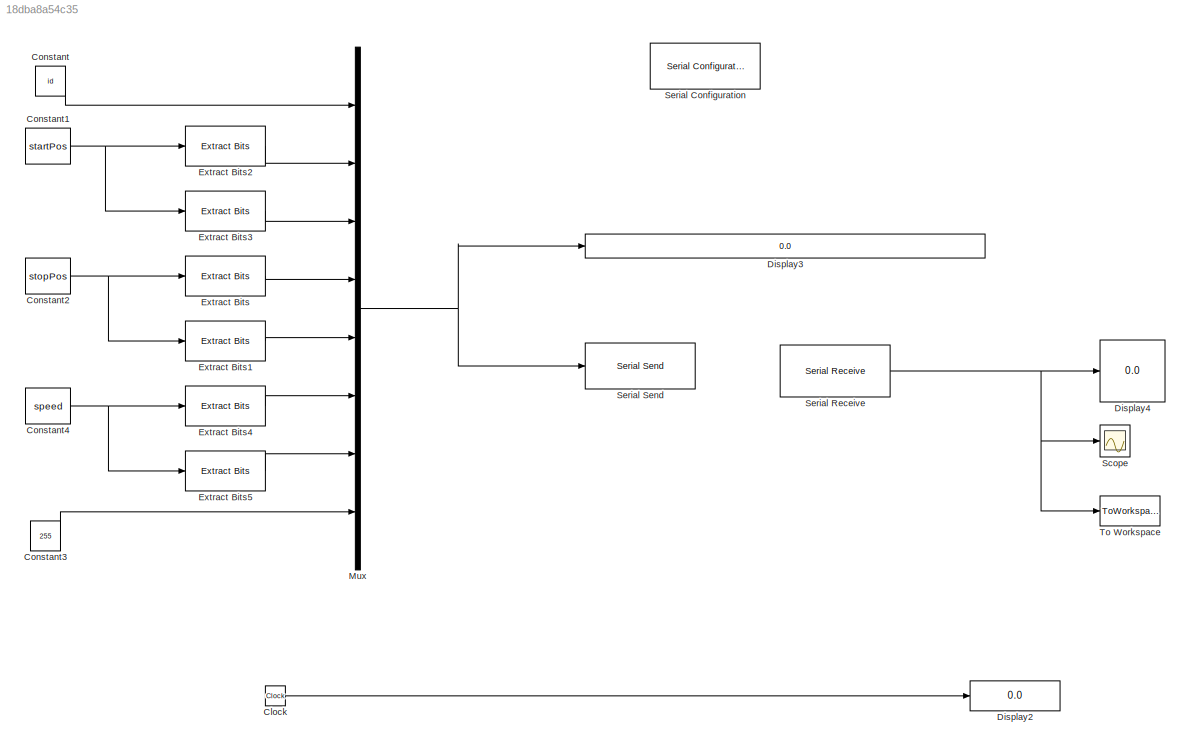
MODEL slx_18dba8a54c35
KIND model
BLOCK [Clock] Clock
BLOCK [Constant] Constant
  OutDataTypeStr = uint8
  SampleTime = 1
  Value = id
BLOCK [Constant] Constant1
  OutDataTypeStr = uint16
  SampleTime = 1
  Value = startPos
BLOCK [Constant] Constant2
  OutDataTypeStr = uint16
  SampleTime = 1
  Value = stopPos
BLOCK [Constant] Constant3
  OutDataTypeStr = uint8
  SampleTime = 1
  Value = 255
BLOCK [Constant] Constant4
  OutDataTypeStr = uint16
  SampleTime = 1
  Value = speed
BLOCK [Display] Display2
  Decimation = 1
  Format = hex (Stored Integer)
  Ports = [1]
BLOCK [Display] Display3
  Decimation = 1
  Format = hex (Stored Integer)
  Ports = [1]
BLOCK [Display] Display4
  Decimation = 1
  Format = hex (Stored Integer)
  Ports = [1]
BLOCK [Reference] Extract Bits  REF=simulink/Logic and Bit
Operations/Extract Bits
  Ports = [1, 1]
  SourceBlock = simulink/Logic and Bit\nOperations/Extract Bits
  SourceType = Extract Bits
  bitIdxRange = [0 7]
  bitsToExtract = Upper half
  numBits = 8
  outScalingMode = Treat bit field as an integer
BLOCK [Reference] Extract Bits1  REF=simulink/Logic and Bit
Operations/Extract Bits
  Ports = [1, 1]
  SourceBlock = simulink/Logic and Bit\nOperations/Extract Bits
  SourceType = Extract Bits
  bitIdxRange = [0 7]
  bitsToExtract = Lower half
  numBits = 8
  outScalingMode = Treat bit field as an integer
BLOCK [Reference] Extract Bits2  REF=simulink/Logic and Bit
Operations/Extract Bits
  Ports = [1, 1]
  SourceBlock = simulink/Logic and Bit\nOperations/Extract Bits
  SourceType = Extract Bits
  bitIdxRange = [0 7]
  bitsToExtract = Upper half
  numBits = 8
  outScalingMode = Treat bit field as an integer
BLOCK [Reference] Extract Bits3  REF=simulink/Logic and Bit
Operations/Extract Bits
  Ports = [1, 1]
  SourceBlock = simulink/Logic and Bit\nOperations/Extract Bits
  SourceType = Extract Bits
  bitIdxRange = [0 7]
  bitsToExtract = Lower half
  numBits = 8
  outScalingMode = Treat bit field as an integer
BLOCK [Reference] Extract Bits4  REF=simulink/Logic and Bit
Operations/Extract Bits
  Ports = [1, 1]
  SourceBlock = simulink/Logic and Bit\nOperations/Extract Bits
  SourceType = Extract Bits
  bitIdxRange = [0 7]
  bitsToExtract = Upper half
  numBits = 8
  outScalingMode = Treat bit field as an integer
BLOCK [Reference] Extract Bits5  REF=simulink/Logic and Bit
Operations/Extract Bits
  Ports = [1, 1]
  SourceBlock = simulink/Logic and Bit\nOperations/Extract Bits
  SourceType = Extract Bits
  bitIdxRange = [0 7]
  bitsToExtract = Lower half
  numBits = 8
  outScalingMode = Treat bit field as an integer
BLOCK [Mux] Mux
  DisplayOption = bar
  Inputs = 8
  Ports = [8, 1]
BLOCK [Scope] Scope
  Floating = off
  NumInputPorts = 1
  Ports = [1]
  ShowLegends = off
  YMax = 0
  YMin = -30000
  ZoomMode = xonly
BLOCK [Reference] Serial Configuration  REF=instrumentlib/Serial Configuration
  BaudRate = 115200
  ByteOrder = LittleEndian
  ComPort = COM4
  ComPortMenu = COM4
  DataBits = 8
  FlowControl = none
  ObjConstructor = serial('COM4');
  Parity = none
  Ports = []
  Priority = -200000
  SourceBlock = instrumentlib/Serial Configuration
  SourceType = Serial Configuration
  StopBits = 1
  Timeout = 0.01
BLOCK [Reference] Serial Receive  REF=instrumentlib/Serial Receive
  ActionDataUnavailable = Output custom value
  ComPort = COM4
  ComPortMenu = COM4
  CustomValue = 0
  DataSize = 3
  DataType = int16
  EnableBlockingMode = on
  ObjConstructor = serial('COM4');
  Ports = [0, 1]
  Priority = 3
  SampleTime = 0.01
  SourceBlock = instrumentlib/Serial Receive
  SourceType = Serial Receive
  Terminator = <none>
BLOCK [Reference] Serial Send  REF=instrumentlib/Serial Send
  ComPort = COM4
  ComPortMenu = COM4
  EnableBlockingMode = on
  ObjConstructor = serial('COM4');
  Ports = [1]
  Priority = 2
  SourceBlock = instrumentlib/Serial Send
  SourceType = Serial Send
  Terminator = <none>
BLOCK [ToWorkspace] To Workspace
  FixptAsFi = on
  MaxDataPoints = inf
  Ports = [1]
  SampleTime = -1
  Save2DSignal = 2-D array (concatenate along first dimension)
  VariableName = result
LINE Clock:1 -> Display2:1
NET Constant1:1 -> Extract Bits2:1, Extract Bits3:1
NET Constant2:1 -> Extract Bits1:1, Extract Bits:1
LINE Constant3:1 -> Mux:8
NET Constant4:1 -> Extract Bits4:1, Extract Bits5:1
LINE Constant:1 -> Mux:1
LINE Extract Bits1:1 -> Mux:5
LINE Extract Bits2:1 -> Mux:2
LINE Extract Bits3:1 -> Mux:3
LINE Extract Bits4:1 -> Mux:6
LINE Extract Bits5:1 -> Mux:7
LINE Extract Bits:1 -> Mux:4
NET Mux:1 -> Display3:1, Serial Send:1
NET Serial Receive:1 -> Display4:1, Scope:1, To Workspace:1
note: NET lines group one-source signal fan-out (src -> all destinations, sorted); 1:1 wires keep LINE
